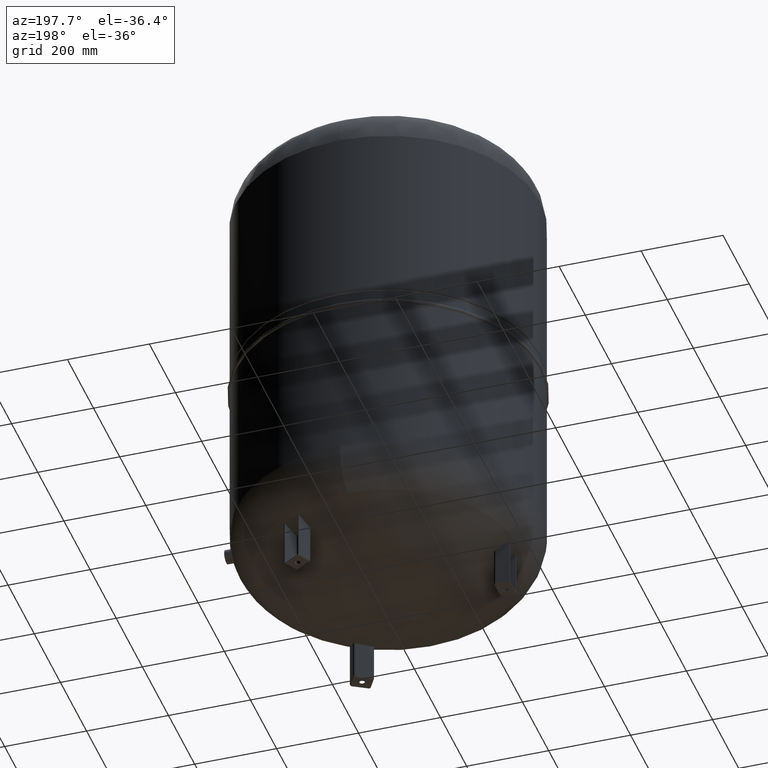
[diagram: clean part render]
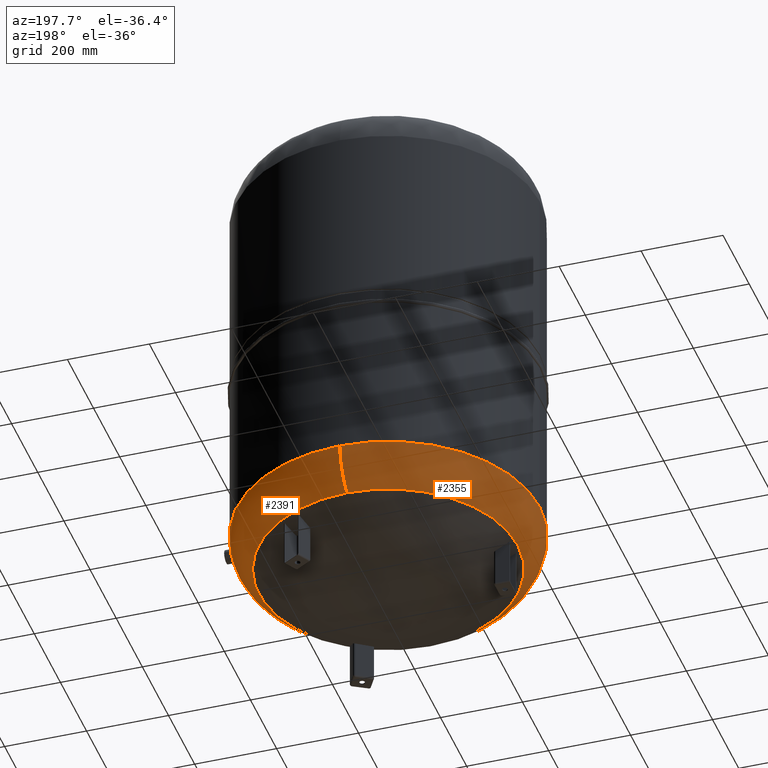
[diagram: same view with one multi-face feature highlighted, each face labeled with its STEP entity id]
A machine part, auxiliary view. The highlighted faces form ONE feature: a constant-radius fillet chain: 2 tangent blend faces with common blend radius 115.5 mm. The faces share edges in the B-rep.
Their STEP definitions:
[1] entity #2391 (Torus):
#2277=CARTESIAN_POINT('',(370.0,1.062956E-014,218.793879611869530));
#2278=VERTEX_POINT('',#2277);
#2285=CARTESIAN_POINT('',(-4.531044E-014,369.999999999999940,218.793879611869580));
#2286=VERTEX_POINT('',#2285);
#2287=CARTESIAN_POINT('',(0.0,-3.468087E-014,218.793879611869530));
#2288=DIRECTION('',(0.0,0.0,1.0));
#2289=DIRECTION('',(-1.0,0.0,0.0));
#2290=AXIS2_PLACEMENT_3D('',#2287,#2288,#2289);
#2291=CIRCLE('',#2290,370.0);
#2292=EDGE_CURVE('',#2278,#2286,#2291,.T.);
#2309=CARTESIAN_POINT('',(0.0,-370.000000000000060,218.793879611869470));
#2310=VERTEX_POINT('',#2309);
#2311=CARTESIAN_POINT('',(0.0,-315.931034482758610,120.985505725079490));
#2312=VERTEX_POINT('',#2311);
#2313=CARTESIAN_POINT('',(0.0,-254.500000000000060,218.793879611869530));
#2314=DIRECTION('',(1.0,0.0,0.0));
#2315=DIRECTION('',(0.0,-1.0,0.0));
#2316=AXIS2_PLACEMENT_3D('',#2313,#2314,#2315);
#2317=CIRCLE('',#2316,115.500000000000000);
#2318=EDGE_CURVE('',#2310,#2312,#2317,.T.);
#2328=CARTESIAN_POINT('',(-3.868912E-014,315.931034482758610,120.985505725079610));
#2329=VERTEX_POINT('',#2328);
#2330=CARTESIAN_POINT('',(-3.116623E-014,254.500000000000000,218.793879611869580));
#2331=DIRECTION('',(-1.0,0.0,0.0));
#2332=DIRECTION('',(0.0,1.0,0.0));
#2333=AXIS2_PLACEMENT_3D('',#2330,#2331,#2332);
#2334=CIRCLE('',#2333,115.500000000000000);
#2335=EDGE_CURVE('',#2286,#2329,#2334,.T.);
#2363=CARTESIAN_POINT('',(0.0,-1.671377E-014,120.985505725079550));
#2364=DIRECTION('',(0.0,0.0,1.0));
#2365=DIRECTION('',(-1.0,0.0,0.0));
#2366=AXIS2_PLACEMENT_3D('',#2363,#2364,#2365);
#2367=CIRCLE('',#2366,315.931034482758610);
#2368=EDGE_CURVE('',#2312,#2329,#2367,.T.);
#2373=CARTESIAN_POINT('',(0.0,-3.468087E-014,218.793879611869560));
#2374=DIRECTION('',(0.0,-1.836970E-016,1.0));
#2375=DIRECTION('',(0.0,-1.0,0.0));
#2376=AXIS2_PLACEMENT_3D('',#2373,#2374,#2375);
#2377=TOROIDAL_SURFACE('',#2376,254.500000000000030,115.500000000000000);
#2378=ORIENTED_EDGE('',*,*,#2318,.T.);
#2379=ORIENTED_EDGE('',*,*,#2368,.T.);
#2380=ORIENTED_EDGE('',*,*,#2335,.F.);
#2381=ORIENTED_EDGE('',*,*,#2292,.F.);
#2382=CARTESIAN_POINT('',(0.0,-3.468087E-014,218.793879611869530));
#2383=DIRECTION('',(0.0,0.0,1.0));
#2384=DIRECTION('',(-1.0,0.0,0.0));
#2385=AXIS2_PLACEMENT_3D('',#2382,#2383,#2384);
#2386=CIRCLE('',#2385,370.0);
#2387=EDGE_CURVE('',#2310,#2278,#2386,.T.);
#2388=ORIENTED_EDGE('',*,*,#2387,.F.);
#2389=EDGE_LOOP('',(#2378,#2379,#2380,#2381,#2388));
#2390=FACE_OUTER_BOUND('',#2389,.T.);
#2391=ADVANCED_FACE('',(#2390),#2377,.T.);
[2] entity #2355 (Torus):
#2260=CARTESIAN_POINT('',(-370.0,-3.468087E-014,218.793879611869530));
#2261=VERTEX_POINT('',#2260);
#2285=CARTESIAN_POINT('',(-4.531044E-014,369.999999999999940,218.793879611869580));
#2286=VERTEX_POINT('',#2285);
#2294=CARTESIAN_POINT('',(0.0,-3.468087E-014,218.793879611869530));
#2295=DIRECTION('',(0.0,0.0,1.0));
#2296=DIRECTION('',(-1.0,0.0,0.0));
#2297=AXIS2_PLACEMENT_3D('',#2294,#2295,#2296);
#2298=CIRCLE('',#2297,370.0);
#2299=EDGE_CURVE('',#2286,#2261,#2298,.T.);
#2304=CARTESIAN_POINT('',(0.0,-3.468087E-014,218.793879611869560));
#2305=DIRECTION('',(0.0,-1.836970E-016,1.0));
#2306=DIRECTION('',(0.0,-1.0,0.0));
#2307=AXIS2_PLACEMENT_3D('',#2304,#2305,#2306);
#2308=TOROIDAL_SURFACE('',#2307,254.500000000000030,115.500000000000000);
#2309=CARTESIAN_POINT('',(0.0,-370.000000000000060,218.793879611869470));
#2310=VERTEX_POINT('',#2309);
#2311=CARTESIAN_POINT('',(0.0,-315.931034482758610,120.985505725079490));
#2312=VERTEX_POINT('',#2311);
#2313=CARTESIAN_POINT('',(0.0,-254.500000000000060,218.793879611869530));
#2314=DIRECTION('',(1.0,0.0,0.0));
#2315=DIRECTION('',(0.0,-1.0,0.0));
#2316=AXIS2_PLACEMENT_3D('',#2313,#2314,#2315);
#2317=CIRCLE('',#2316,115.500000000000000);
#2318=EDGE_CURVE('',#2310,#2312,#2317,.T.);
#2319=ORIENTED_EDGE('',*,*,#2318,.F.);
#2320=CARTESIAN_POINT('',(0.0,-3.468087E-014,218.793879611869530));
#2321=DIRECTION('',(0.0,0.0,1.0));
#2322=DIRECTION('',(-1.0,0.0,0.0));
#2323=AXIS2_PLACEMENT_3D('',#2320,#2321,#2322);
#2324=CIRCLE('',#2323,370.0);
#2325=EDGE_CURVE('',#2261,#2310,#2324,.T.);
#2326=ORIENTED_EDGE('',*,*,#2325,.F.);
#2327=ORIENTED_EDGE('',*,*,#2299,.F.);
#2328=CARTESIAN_POINT('',(-3.868912E-014,315.931034482758610,120.985505725079610));
#2329=VERTEX_POINT('',#2328);
#2330=CARTESIAN_POINT('',(-3.116623E-014,254.500000000000000,218.793879611869580));
#2331=DIRECTION('',(-1.0,0.0,0.0));
#2332=DIRECTION('',(0.0,1.0,0.0));
#2333=AXIS2_PLACEMENT_3D('',#2330,#2331,#2332);
#2334=CIRCLE('',#2333,115.500000000000000);
#2335=EDGE_CURVE('',#2286,#2329,#2334,.T.);
#2336=ORIENTED_EDGE('',*,*,#2335,.T.);
#2337=CARTESIAN_POINT('',(-315.931034482758610,-1.671377E-014,120.985505725079550));
#2338=VERTEX_POINT('',#2337);
#2339=CARTESIAN_POINT('',(0.0,-1.671377E-014,120.985505725079550));
#2340=DIRECTION('',(0.0,0.0,1.0));
#2341=DIRECTION('',(-1.0,0.0,0.0));
#2342=AXIS2_PLACEMENT_3D('',#2339,#2340,#2341);
#2343=CIRCLE('',#2342,315.931034482758610);
#2344=EDGE_CURVE('',#2329,#2338,#2343,.T.);
#2345=ORIENTED_EDGE('',*,*,#2344,.T.);
#2346=CARTESIAN_POINT('',(0.0,-1.671377E-014,120.985505725079550));
#2347=DIRECTION('',(0.0,0.0,1.0));
#2348=DIRECTION('',(-1.0,0.0,0.0));
#2349=AXIS2_PLACEMENT_3D('',#2346,#2347,#2348);
#2350=CIRCLE('',#2349,315.931034482758610);
#2351=EDGE_CURVE('',#2338,#2312,#2350,.T.);
#2352=ORIENTED_EDGE('',*,*,#2351,.T.);
#2353=EDGE_LOOP('',(#2319,#2326,#2327,#2336,#2345,#2352));
#2354=FACE_OUTER_BOUND('',#2353,.T.);
#2355=ADVANCED_FACE('',(#2354),#2308,.T.);